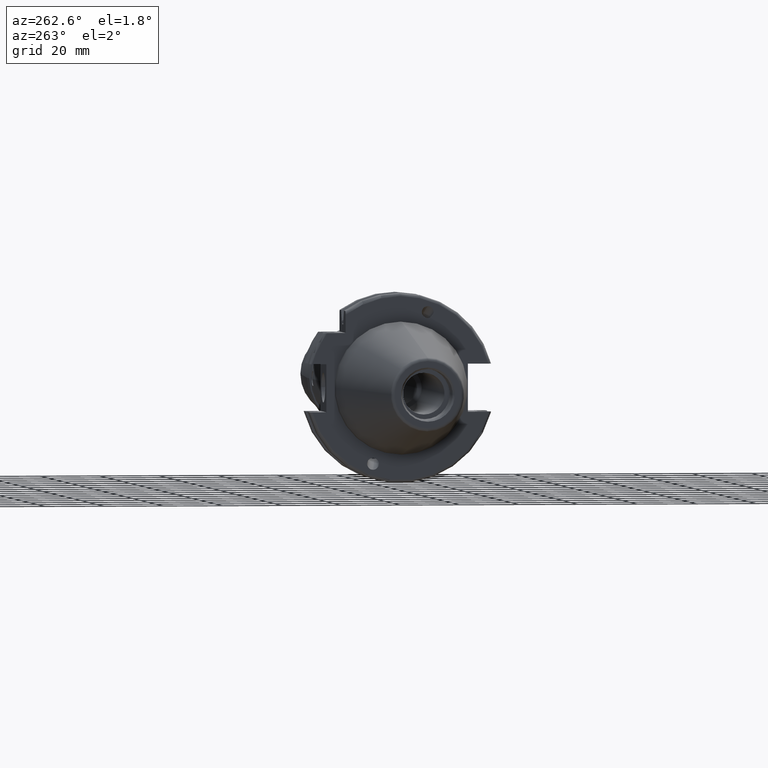
[diagram: clean part render]
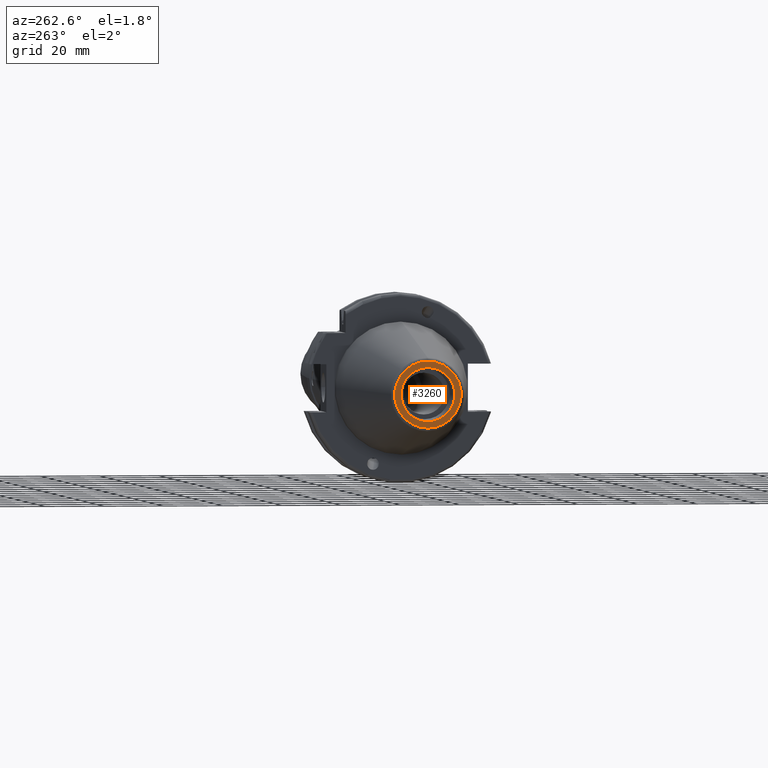
[diagram: same view with one face highlighted and labeled with its STEP entity id]
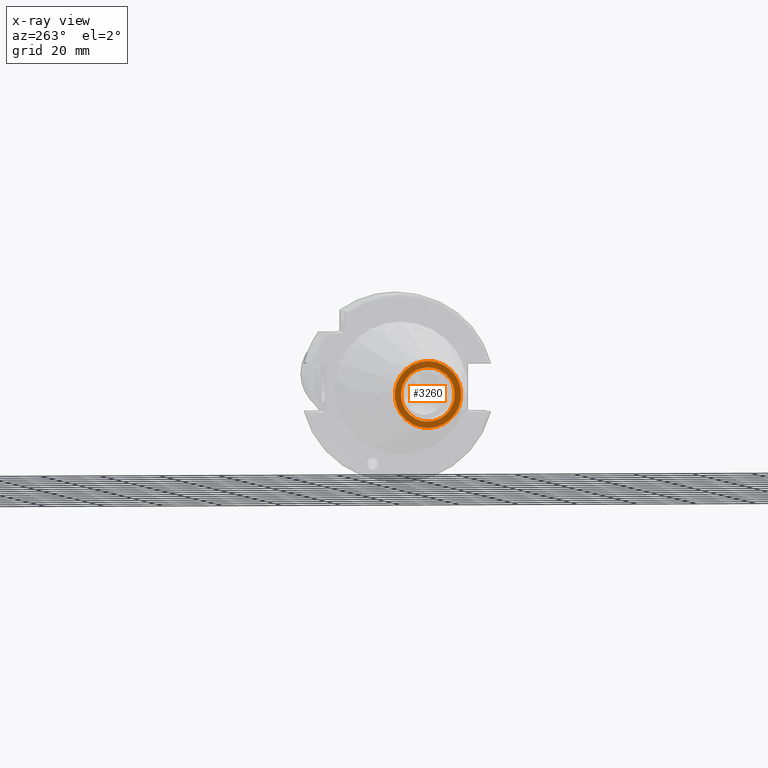
[diagram: x-ray of the same camera — body ghosted, the highlighted face saturated]
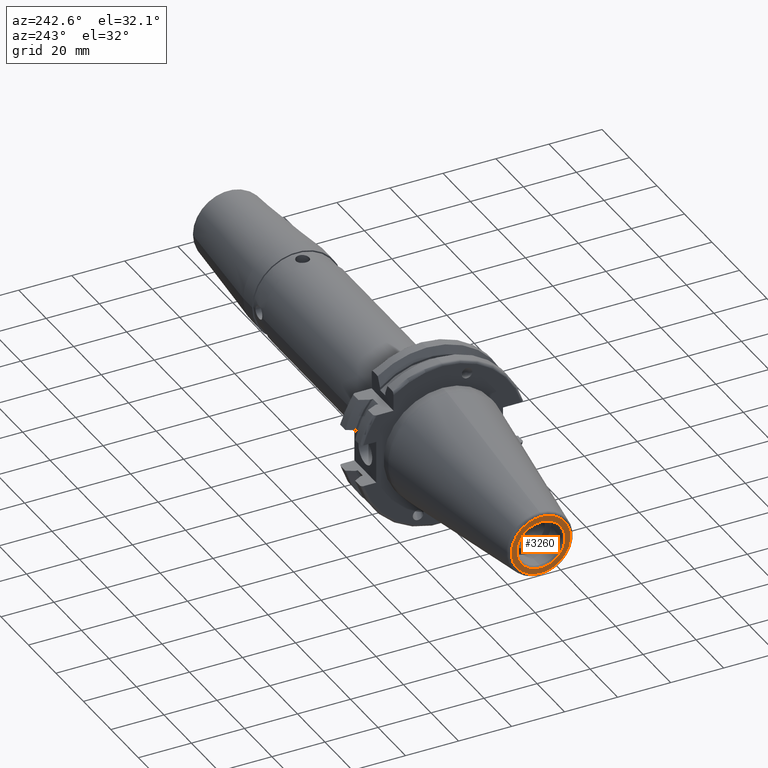
[diagram: same view with one face highlighted and labeled with its STEP entity id]
A machine part, auxiliary view. The second image highlights one B-rep face of the part: STEP entity #3260.
The next image is the same camera in x-ray: the body ghosted, the highlighted face saturated — about 0% of this face is hidden behind the body in this view.
A second angle (auxiliary view) of the same face is appended — the face is thin or edge-on in the first view.
In plain terms, the highlighted planar face has unit normal (1, 0, -0).
Its self-contained STEP definition (entity closure, byte-faithful):
#23 = CARTESIAN_POINT ( 'NONE',  ( -68.40000000000001990, -1.561251128379126385E-14, -7.489693497978174534E-17 ) ) ;
#384 = VERTEX_POINT ( 'NONE', #2131 ) ;
#574 = DIRECTION ( 'NONE',  ( 0.0000000000000000000, -1.000000000000000000, 0.0000000000000000000 ) ) ;
#610 = ORIENTED_EDGE ( 'NONE', *, *, #5109, .T. ) ;
#1122 = AXIS2_PLACEMENT_3D ( 'NONE', #23, #3840, #574 ) ;
#1265 = CARTESIAN_POINT ( 'NONE',  ( -68.40000000000001990, -9.077350269189638610, -7.489693497978174534E-17 ) ) ;
#1440 = ORIENTED_EDGE ( 'NONE', *, *, #2994, .T. ) ;
#1491 = CARTESIAN_POINT ( 'NONE',  ( -68.40000000000001990, 9.077350269189610188, -7.489693497978174534E-17 ) ) ;
#1496 = AXIS2_PLACEMENT_3D ( 'NONE', #2212, #6007, #2794 ) ;
#1626 = CARTESIAN_POINT ( 'NONE',  ( -68.40000000000001990, -11.21221394467993981, -7.489693497978174534E-17 ) ) ;
#1671 = FACE_OUTER_BOUND ( 'NONE', #6713, .T. ) ;
#1755 = EDGE_LOOP ( 'NONE', ( #6800, #6743 ) ) ;
#2081 = CIRCLE ( 'NONE', #2379, 9.077350269189624399 ) ;
#2131 = CARTESIAN_POINT ( 'NONE',  ( -68.40000000000001990, 9.077350269189611964, 1.036757860210462468E-15 ) ) ;
#2212 = CARTESIAN_POINT ( 'NONE',  ( -68.40000000000001990, -1.561251128379126385E-14, -7.489693497978174534E-17 ) ) ;
#2286 = DIRECTION ( 'NONE',  ( -1.000000000000000000, -1.806543779445901364E-16, 0.0000000000000000000 ) ) ;
#2379 = AXIS2_PLACEMENT_3D ( 'NONE', #5636, #2395, #6172 ) ;
#2395 = DIRECTION ( 'NONE',  ( -1.000000000000000000, -1.806543779445901364E-16, 0.0000000000000000000 ) ) ;
#2598 = DIRECTION ( 'NONE',  ( 1.000000000000000000, 1.806543779445901364E-16, 0.0000000000000000000 ) ) ;
#2794 = DIRECTION ( 'NONE',  ( 0.0000000000000000000, -1.000000000000000000, 0.0000000000000000000 ) ) ;
#2843 = AXIS2_PLACEMENT_3D ( 'NONE', #1491, #2598, #6355 ) ;
#2994 = EDGE_CURVE ( 'NONE', #5757, #3461, #4812, .T. ) ;
#3003 = EDGE_CURVE ( 'NONE', #5875, #384, #4639, .T. ) ;
#3260 = ADVANCED_FACE ( 'NONE', ( #5991, #1671 ), #6858, .F. ) ;
#3461 = VERTEX_POINT ( 'NONE', #1626 ) ;
#3840 = DIRECTION ( 'NONE',  ( -1.000000000000000000, -1.806543779445901364E-16, 0.0000000000000000000 ) ) ;
#4301 = CIRCLE ( 'NONE', #5641, 11.21221394467992560 ) ;
#4639 = CIRCLE ( 'NONE', #1496, 9.077350269189624399 ) ;
#4812 = CIRCLE ( 'NONE', #1122, 11.21221394467992560 ) ;
#4934 = EDGE_CURVE ( 'NONE', #384, #5875, #2081, .T. ) ;
#5109 = EDGE_CURVE ( 'NONE', #3461, #5757, #4301, .T. ) ;
#5530 = CARTESIAN_POINT ( 'NONE',  ( -68.40000000000001990, -1.561251128379126385E-14, -7.489693497978174534E-17 ) ) ;
#5636 = CARTESIAN_POINT ( 'NONE',  ( -68.40000000000001990, -1.561251128379126385E-14, -7.489693497978174534E-17 ) ) ;
#5641 = AXIS2_PLACEMENT_3D ( 'NONE', #5530, #2286, #6074 ) ;
#5757 = VERTEX_POINT ( 'NONE', #6031 ) ;
#5875 = VERTEX_POINT ( 'NONE', #1265 ) ;
#5991 = FACE_BOUND ( 'NONE', #1755, .T. ) ;
#6007 = DIRECTION ( 'NONE',  ( -1.000000000000000000, -1.806543779445901364E-16, 0.0000000000000000000 ) ) ;
#6031 = CARTESIAN_POINT ( 'NONE',  ( -68.40000000000001990, 11.21221394467990962, 1.370912946468717885E-15 ) ) ;
#6074 = DIRECTION ( 'NONE',  ( 0.0000000000000000000, -1.000000000000000000, 0.0000000000000000000 ) ) ;
#6172 = DIRECTION ( 'NONE',  ( 0.0000000000000000000, -1.000000000000000000, 0.0000000000000000000 ) ) ;
#6355 = DIRECTION ( 'NONE',  ( -1.806543779445901364E-16, 1.000000000000000000, 0.0000000000000000000 ) ) ;
#6713 = EDGE_LOOP ( 'NONE', ( #610, #1440 ) ) ;
#6743 = ORIENTED_EDGE ( 'NONE', *, *, #4934, .F. ) ;
#6800 = ORIENTED_EDGE ( 'NONE', *, *, #3003, .F. ) ;
#6858 = PLANE ( 'NONE',  #2843 ) ;